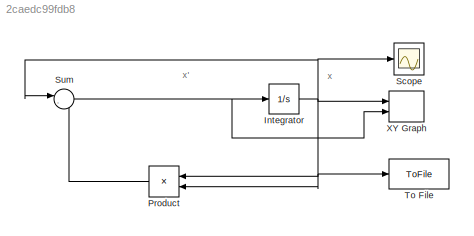
MODEL slx_2caedc99fdb8
KIND model
CONFIG AbsTol = auto
CONFIG EnableMultiTasking = on
CONFIG FixedStep = auto
CONFIG MaxStep = auto
CONFIG MinStep = auto
CONFIG RelTol = 1e-3
CONFIG SampleTimeConstraint = Unconstrained
CONFIG SolverName = ode45
CONFIG StartTime = 0.0
CONFIG StopTime = 1.7
WORKSPACE source: mxarray member
WORKSPACE X0 = 0
BLOCK [Integrator] Integrator
  InitialCondition = 1.2
  Ports = [1, 1]
BLOCK [Product] Product
  NameLocation = top
  Ports = [2, 1]
BLOCK [Scope] Scope
  Floating = off
  NumInputPorts = 1
  Ports = [1]
  ScopeSpecificationString = Simulink.scopes.TimeScopeBlockCfg('CurrentConfiguration', extmgr.ConfigurationSet(extmgr.Configuration('Core','General UI',true),extmgr.Configuration('Core','Source UI',true),extmgr.Configuration('Sources','WiredSimulink',true),extmgr.Configuration('Visuals','Time Domain',true),extmgr.Configuration('Tools','Plot Navigation',true),extmgr.Configuration('Tools','Measurements',true)),'Version','2021b'...<+1ch>
BLOCK [Sum] Sum
  Inputs = |-+
  Ports = [2, 1]
BLOCK [ToFile] To File
  Filename = x.mat
  MatrixName = x
  Ports = [1]
  SampleTime = 0.001
BLOCK [Record] XY Graph
  CompatibilityTag = XY
  FileSettingsInternal = {"entries":[{"content":{"excelSettings":{"content":{},"type":"Streamout.ExcelSettings"}},"type":"Streamout.FileSettingStorage","uuid":"c7d7ec70-e5b2-4626-a0cd-61a9e9ace36f"}],"packageUris":["http://schema.mathworks.com/mf0/streamout_blocks/R2020a"],"version":"1.0"}
  Layout = [1 1]
  Ports = [2]
  SignalsInternal = {"entries":[{"content":{"signals":[{"content":{"blockPath":["fig2_1_simulink/XY Graph"],"channel":[],"dimensions":[1],"domain":"fig2_1_simulink/XY Graph","lineColor":"#a2142f","plots":[1],"port":1,"sid":[""],"signalID":299,"signalName":"Integrator"},"type":"RecordBlkView.Signal","uuid":"2ec07001-44e3-40f7-9b6b-57d81be30820"},{"content":{"blockPath":["fig2_1_simulink/XY Graph"],"channel":[],"dimens...<+388ch>
  VisualizationBindings = {"xyplotplugin":{"info":[{"series":[{"bindingParametersList":[{"parameter":"X-Axis","signalID":299,"signalName":"Integrator"},{"parameter":"Y-Axis","signalID":303,"signalName":"Sum"}],"seriesID":16801}],"subplotID":1}]}}
ANNOTATION (root): x
ANNOTATION (root): x'
NET Integrator:1 -> Product:1, Product:2, Scope:1, Sum:1, To File:1, XY Graph:1
LINE Product:1 -> Sum:2
NET Sum:1 -> Integrator:1, XY Graph:2
note: NET lines group one-source signal fan-out (src -> all destinations, sorted); 1:1 wires keep LINE
